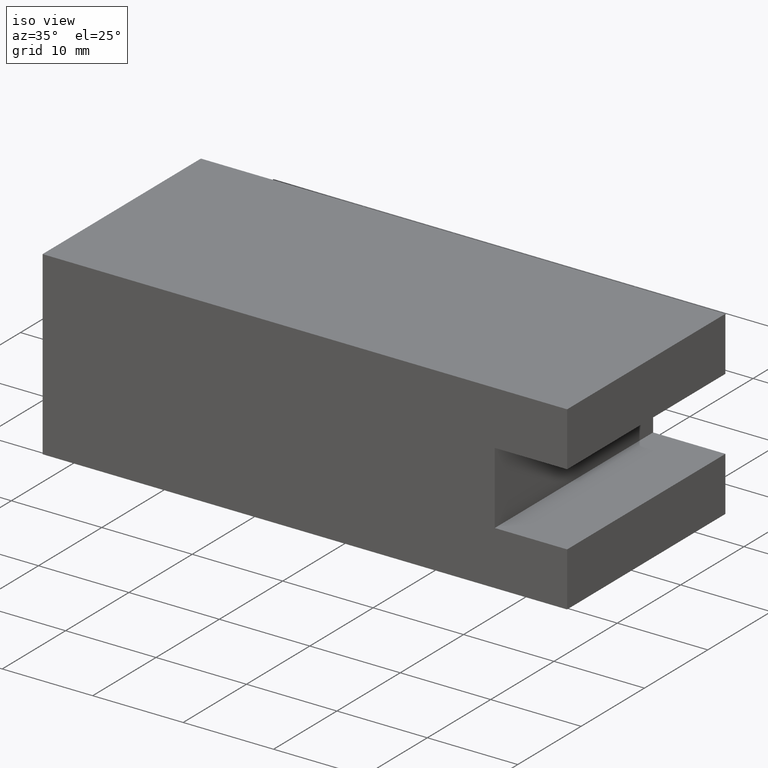
[diagram: clean part render]
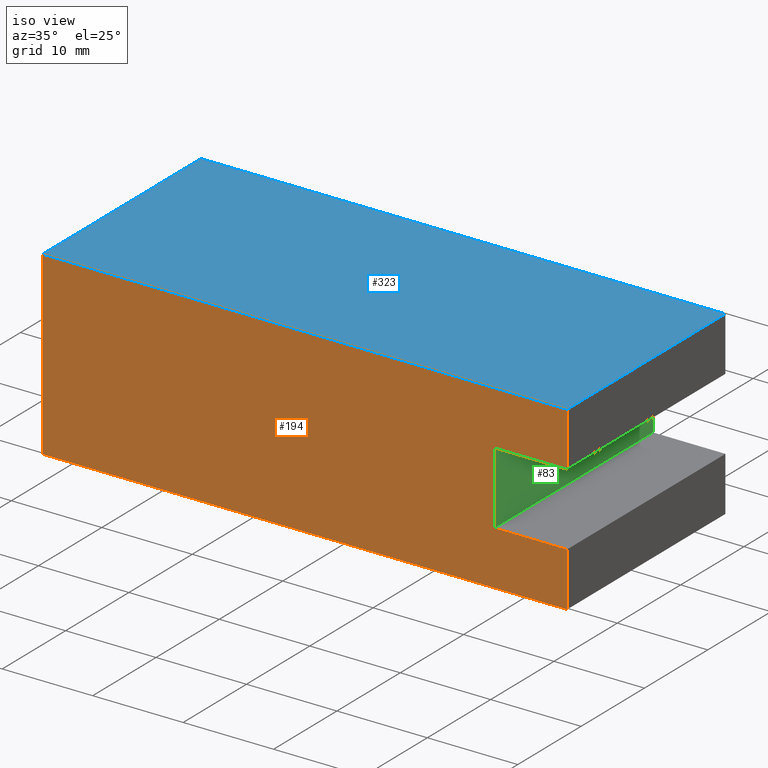
[diagram: same view with three faces highlighted in distinct colors, each labeled with its STEP entity id]
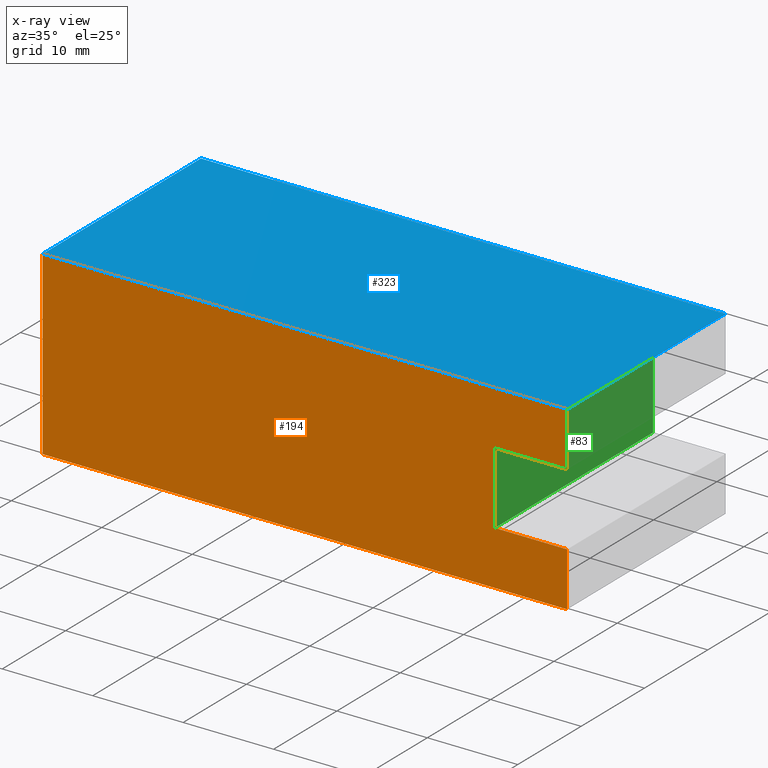
[diagram: x-ray of the same camera — body ghosted, the three highlighted faces saturated]
A machine part, iso view with three faces highlighted in distinct colors.
The next image is the same camera in x-ray (body ghosted, the three faces saturated) — at least one of them is partly hidden behind the body in this view.
Their STEP definitions:

[orange] entity #194 — the highlighted planar face has unit normal (0, -1, 0).
#49=CARTESIAN_POINT('',(37.825283991875160,-11.961124341222462,5.999999999999998));
#50=VERTEX_POINT('',#49);
#51=CARTESIAN_POINT('',(37.825283991875160,-11.961124341222462,14.0));
#52=VERTEX_POINT('',#51);
#53=CARTESIAN_POINT('',(37.825283991875160,-11.961124341222462,5.999999999999998));
#54=DIRECTION('',(0.0,0.0,1.0));
#55=VECTOR('',#54,8.000000000000002);
#56=LINE('',#53,#55);
#57=EDGE_CURVE('',#50,#52,#56,.T.);
#89=CARTESIAN_POINT('',(45.825283991875168,-11.961124341222465,13.999999999999995));
#90=VERTEX_POINT('',#89);
#91=CARTESIAN_POINT('',(37.825283991875160,-11.961124341222462,14.0));
#92=DIRECTION('',(1.0,0.0,0.0));
#93=VECTOR('',#92,8.000000000000007);
#94=LINE('',#91,#93);
#95=EDGE_CURVE('',#52,#90,#94,.T.);
#120=CARTESIAN_POINT('',(45.825283991875160,-11.961124341222462,5.999999999999997));
#121=VERTEX_POINT('',#120);
#122=CARTESIAN_POINT('',(45.825283991875160,-11.961124341222462,5.999999999999997));
#123=DIRECTION('',(-1.0,0.0,0.0));
#124=VECTOR('',#123,8.0);
#125=LINE('',#122,#124);
#126=EDGE_CURVE('',#121,#50,#125,.T.);
#146=CARTESIAN_POINT('',(45.825283991875168,-11.961124341222465,0.0));
#147=DIRECTION('',(0.0,-1.0,0.0));
#148=DIRECTION('',(0.0,0.0,-1.0));
#149=AXIS2_PLACEMENT_3D('',#146,#147,#148);
#150=PLANE('',#149);
#151=ORIENTED_EDGE('',*,*,#126,.T.);
#152=ORIENTED_EDGE('',*,*,#57,.T.);
#153=ORIENTED_EDGE('',*,*,#95,.T.);
#154=CARTESIAN_POINT('',(45.825283991875168,-11.961124341222465,20.0));
#155=VERTEX_POINT('',#154);
#156=CARTESIAN_POINT('',(45.825283991875168,-11.961124341222465,13.999999999999995));
#157=DIRECTION('',(0.0,0.0,1.0));
#158=VECTOR('',#157,6.000000000000005);
#159=LINE('',#156,#158);
#160=EDGE_CURVE('',#90,#155,#159,.T.);
#161=ORIENTED_EDGE('',*,*,#160,.T.);
#162=CARTESIAN_POINT('',(-12.174716008124847,-11.961124341222476,20.0));
#163=VERTEX_POINT('',#162);
#164=CARTESIAN_POINT('',(45.825283991875168,-11.961124341222465,20.0));
#165=DIRECTION('',(-1.0,0.0,0.0));
#166=VECTOR('',#165,58.000000000000014);
#167=LINE('',#164,#166);
#168=EDGE_CURVE('',#155,#163,#167,.T.);
#169=ORIENTED_EDGE('',*,*,#168,.T.);
#170=CARTESIAN_POINT('',(-12.174716008124847,-11.961124341222476,0.0));
#171=VERTEX_POINT('',#170);
#172=CARTESIAN_POINT('',(-12.174716008124847,-11.961124341222476,0.0));
#173=DIRECTION('',(0.0,0.0,1.0));
#174=VECTOR('',#173,20.0);
#175=LINE('',#172,#174);
#176=EDGE_CURVE('',#171,#163,#175,.T.);
#177=ORIENTED_EDGE('',*,*,#176,.F.);
#178=CARTESIAN_POINT('',(45.825283991875168,-11.961124341222465,0.0));
#179=VERTEX_POINT('',#178);
#180=CARTESIAN_POINT('',(-12.174716008124847,-11.961124341222476,0.0));
#181=DIRECTION('',(1.0,0.0,0.0));
#182=VECTOR('',#181,58.000000000000014);
#183=LINE('',#180,#182);
#184=EDGE_CURVE('',#171,#179,#183,.T.);
#185=ORIENTED_EDGE('',*,*,#184,.T.);
#186=CARTESIAN_POINT('',(45.825283991875168,-11.961124341222465,0.0));
#187=DIRECTION('',(0.0,0.0,1.0));
#188=VECTOR('',#187,5.999999999999997);
#189=LINE('',#186,#188);
#190=EDGE_CURVE('',#179,#121,#189,.T.);
#191=ORIENTED_EDGE('',*,*,#190,.T.);
#192=EDGE_LOOP('',(#151,#152,#153,#161,#169,#177,#185,#191));
#193=FACE_OUTER_BOUND('',#192,.T.);
#194=ADVANCED_FACE('',(#193),#150,.T.);

[blue] entity #323 — the highlighted planar face has unit normal (0, 0, 1).
#154=CARTESIAN_POINT('',(45.825283991875168,-11.961124341222465,20.0));
#155=VERTEX_POINT('',#154);
#162=CARTESIAN_POINT('',(-12.174716008124847,-11.961124341222476,20.0));
#163=VERTEX_POINT('',#162);
#164=CARTESIAN_POINT('',(45.825283991875168,-11.961124341222465,20.0));
#165=DIRECTION('',(-1.0,0.0,0.0));
#166=VECTOR('',#165,58.000000000000014);
#167=LINE('',#164,#166);
#168=EDGE_CURVE('',#155,#163,#167,.T.);
#201=CARTESIAN_POINT('',(45.825283991875160,13.038875658777531,20.0));
#202=VERTEX_POINT('',#201);
#209=CARTESIAN_POINT('',(45.825283991875160,13.038875658777531,20.0));
#210=DIRECTION('',(0.0,-1.0,0.0));
#211=VECTOR('',#210,24.999999999999996);
#212=LINE('',#209,#211);
#213=EDGE_CURVE('',#202,#155,#212,.T.);
#248=CARTESIAN_POINT('',(-12.174716008124848,13.038875658777524,20.0));
#249=VERTEX_POINT('',#248);
#250=CARTESIAN_POINT('',(-12.174716008124847,-11.961124341222476,20.0));
#251=DIRECTION('',(0.0,1.0,0.0));
#252=VECTOR('',#251,25.0);
#253=LINE('',#250,#252);
#254=EDGE_CURVE('',#163,#249,#253,.T.);
#288=CARTESIAN_POINT('',(-12.174716008124848,13.038875658777524,20.0));
#289=DIRECTION('',(1.0,0.0,0.0));
#290=VECTOR('',#289,58.000000000000007);
#291=LINE('',#288,#290);
#292=EDGE_CURVE('',#249,#202,#291,.T.);
#312=CARTESIAN_POINT('',(16.825283991875160,0.538875658777529,20.0));
#313=DIRECTION('',(0.0,0.0,1.0));
#314=DIRECTION('',(1.0,0.0,0.0));
#315=AXIS2_PLACEMENT_3D('',#312,#313,#314);
#316=PLANE('',#315);
#317=ORIENTED_EDGE('',*,*,#213,.F.);
#318=ORIENTED_EDGE('',*,*,#292,.F.);
#319=ORIENTED_EDGE('',*,*,#254,.F.);
#320=ORIENTED_EDGE('',*,*,#168,.F.);
#321=EDGE_LOOP('',(#317,#318,#319,#320));
#322=FACE_OUTER_BOUND('',#321,.T.);
#323=ADVANCED_FACE('',(#322),#316,.T.);

[green] entity #83 — the highlighted planar face has unit normal (-1, 0, 0).
#44=CARTESIAN_POINT('',(37.825283991875160,13.038875658777529,5.999999999999998));
#45=DIRECTION('',(-1.0,0.0,0.0));
#46=DIRECTION('',(0.0,0.0,1.0));
#47=AXIS2_PLACEMENT_3D('',#44,#45,#46);
#48=PLANE('',#47);
#49=CARTESIAN_POINT('',(37.825283991875160,-11.961124341222462,5.999999999999998));
#50=VERTEX_POINT('',#49);
#51=CARTESIAN_POINT('',(37.825283991875160,-11.961124341222462,14.0));
#52=VERTEX_POINT('',#51);
#53=CARTESIAN_POINT('',(37.825283991875160,-11.961124341222462,5.999999999999998));
#54=DIRECTION('',(0.0,0.0,1.0));
#55=VECTOR('',#54,8.000000000000002);
#56=LINE('',#53,#55);
#57=EDGE_CURVE('',#50,#52,#56,.T.);
#58=ORIENTED_EDGE('',*,*,#57,.F.);
#59=CARTESIAN_POINT('',(37.825283991875160,13.038875658777529,5.999999999999998));
#60=VERTEX_POINT('',#59);
#61=CARTESIAN_POINT('',(37.825283991875160,13.038875658777529,5.999999999999998));
#62=DIRECTION('',(0.0,-1.0,0.0));
#63=VECTOR('',#62,24.999999999999993);
#64=LINE('',#61,#63);
#65=EDGE_CURVE('',#60,#50,#64,.T.);
#66=ORIENTED_EDGE('',*,*,#65,.F.);
#67=CARTESIAN_POINT('',(37.825283991875160,13.038875658777529,14.0));
#68=VERTEX_POINT('',#67);
#69=CARTESIAN_POINT('',(37.825283991875160,13.038875658777529,14.0));
#70=DIRECTION('',(0.0,0.0,-1.0));
#71=VECTOR('',#70,8.000000000000002);
#72=LINE('',#69,#71);
#73=EDGE_CURVE('',#68,#60,#72,.T.);
#74=ORIENTED_EDGE('',*,*,#73,.F.);
#75=CARTESIAN_POINT('',(37.825283991875160,13.038875658777529,14.0));
#76=DIRECTION('',(0.0,-1.0,0.0));
#77=VECTOR('',#76,24.999999999999993);
#78=LINE('',#75,#77);
#79=EDGE_CURVE('',#68,#52,#78,.T.);
#80=ORIENTED_EDGE('',*,*,#79,.T.);
#81=EDGE_LOOP('',(#58,#66,#74,#80));
#82=FACE_OUTER_BOUND('',#81,.T.);
#83=ADVANCED_FACE('',(#82),#48,.F.);